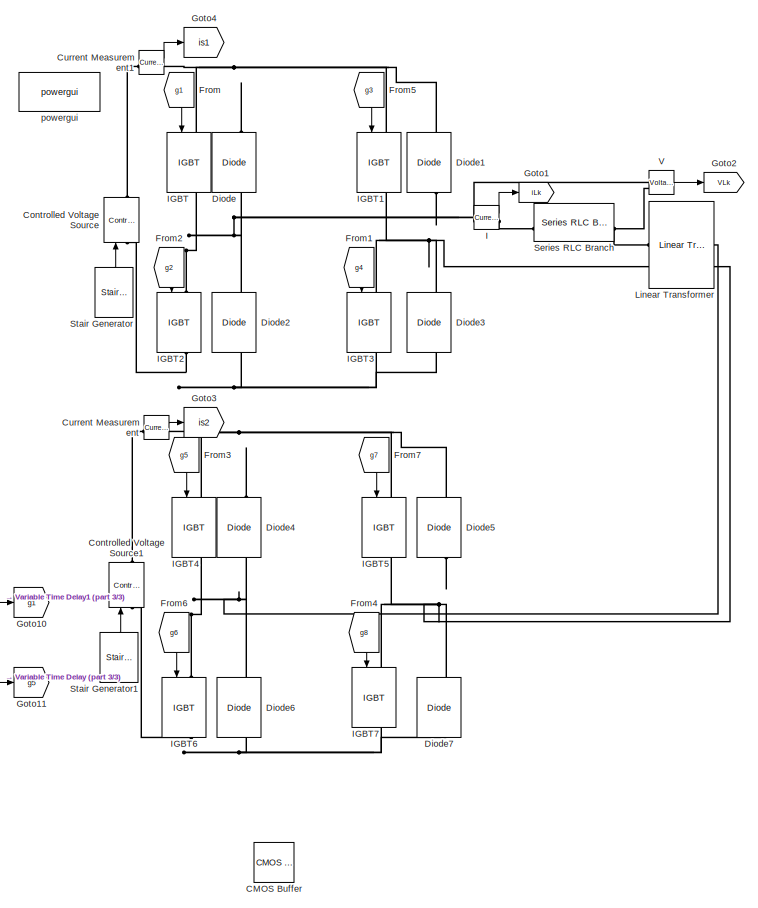
[diagram: root canvas - part 1/3, center side, full height]
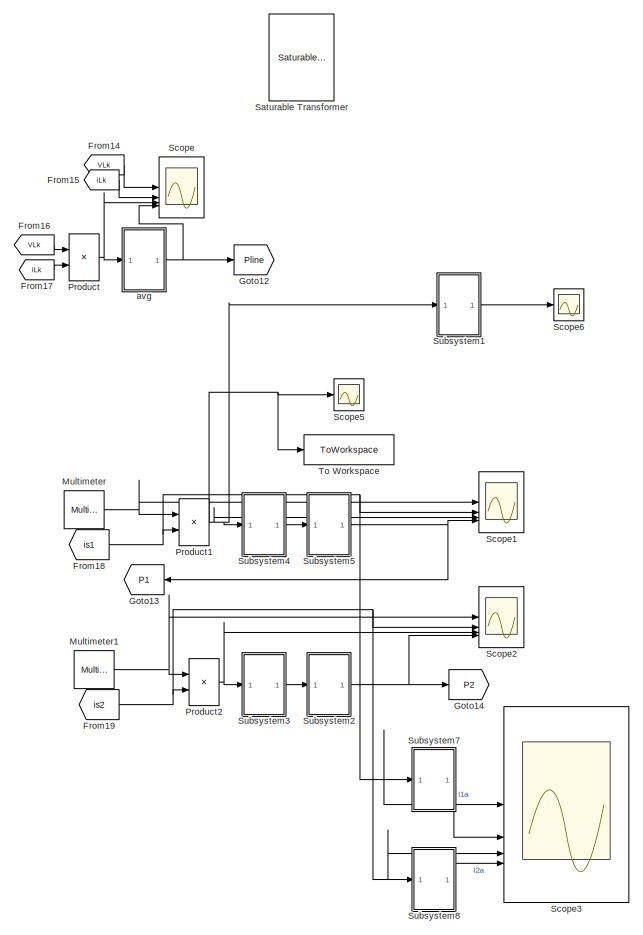
[diagram: root canvas - part 2/3, right side, full height]
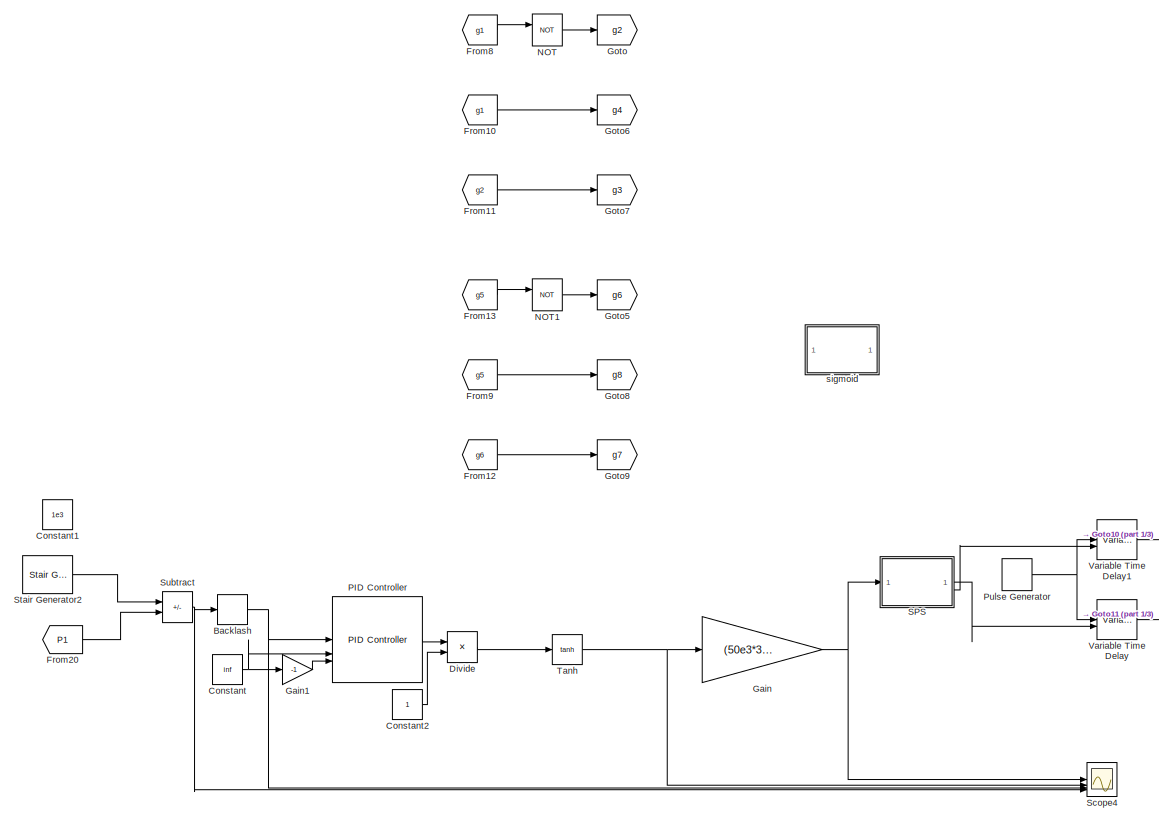
[diagram: root canvas - part 3/3, left side, full height]
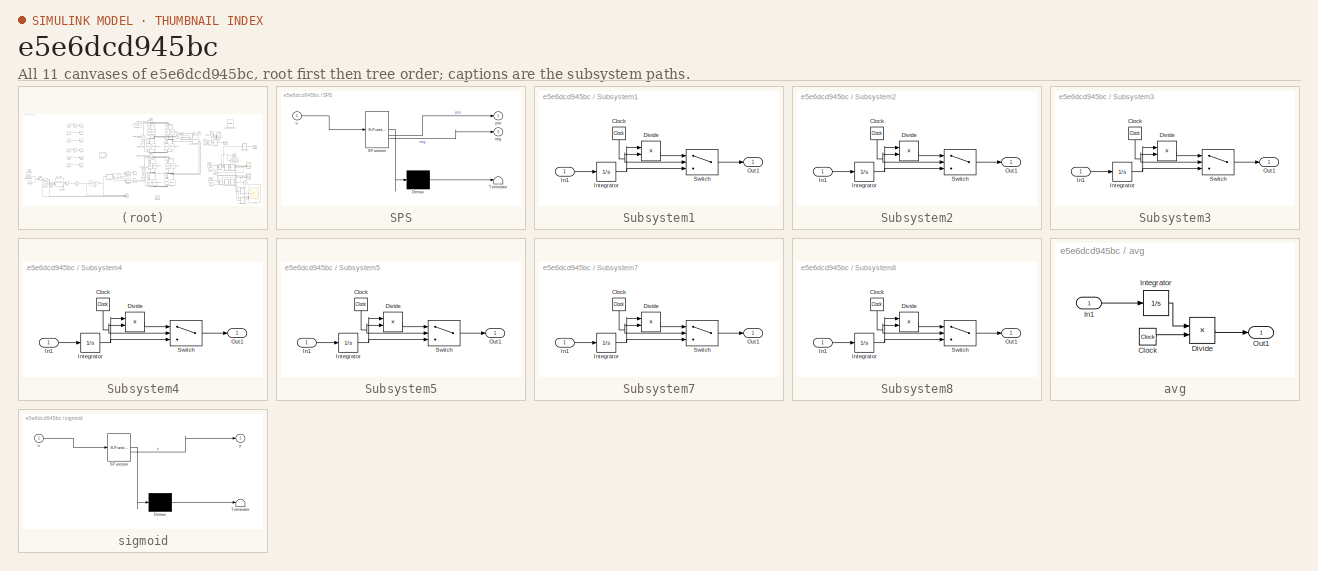
[diagram: thumbnail index - all 11 canvases of the model, root first then tree order]
MODEL slx_e5e6dcd945bc
KIND model
CONFIG AbsTol = auto
CONFIG EnableMultiTasking = off
CONFIG FixedStep = auto
CONFIG MaxStep = auto
CONFIG MinStep = auto
CONFIG RelTol = 1e-3
CONFIG SampleTimeConstraint = Unconstrained
CONFIG SolverName = VariableStepAuto
CONFIG StartTime = 0.0
CONFIG StopTime = 2e-2
BLOCK [Backlash] Backlash
  BacklashWidth = 0
BLOCK [Reference] CMOS Buffer  REF=ee_lib/Integrated Circuits/Logic/CMOS Buffer
  SourceBlock = ee_lib/Integrated Circuits/Logic/CMOS Buffer
  SourceType = CMOS Buffer
BLOCK [Constant] Constant
  Value = inf
BLOCK [Constant] Constant1
  Commented = on
  Value = 1e3
BLOCK [Constant] Constant2
BLOCK [Reference] Controlled Voltage Source  REF=spsControlledVoltageSourceLib/Controlled Voltage Source
  LibrarySourceBlock = sps_lib/Sources/Controlled Voltage Source
  SourceBlock = spsControlledVoltageSourceLib/Controlled Voltage Source
  SourceType = Controlled Voltage Source
BLOCK [Reference] Controlled Voltage Source1  REF=spsControlledVoltageSourceLib/Controlled Voltage Source
  LibrarySourceBlock = sps_lib/Sources/Controlled Voltage Source
  SourceBlock = spsControlledVoltageSourceLib/Controlled Voltage Source
  SourceType = Controlled Voltage Source
BLOCK [Reference] Current Measurement  REF=spsCurrentMeasurementLib/Current Measurement
  LibrarySourceBlock = sps_lib/Sensors and Measurements/Current Measurement
  SourceBlock = spsCurrentMeasurementLib/Current Measurement
  SourceType = Current Measurement
  UserDataPersistent = on
BLOCK [Reference] Current Measurement1  REF=spsCurrentMeasurementLib/Current Measurement
  LibrarySourceBlock = sps_lib/Sensors and Measurements/Current Measurement
  SourceBlock = spsCurrentMeasurementLib/Current Measurement
  SourceType = Current Measurement
  UserDataPersistent = on
BLOCK [Reference] Diode  REF=spsDiodeLib/Diode
  LibrarySourceBlock = sps_lib/Power Electronics/Diode
  NameLocation = right
  SourceBlock = spsDiodeLib/Diode
  SourceType = Diode
BLOCK [Reference] Diode1  REF=spsDiodeLib/Diode
  LibrarySourceBlock = sps_lib/Power Electronics/Diode
  NameLocation = right
  SourceBlock = spsDiodeLib/Diode
  SourceType = Diode
BLOCK [Reference] Diode2  REF=spsDiodeLib/Diode
  LibrarySourceBlock = sps_lib/Power Electronics/Diode
  NameLocation = right
  SourceBlock = spsDiodeLib/Diode
  SourceType = Diode
BLOCK [Reference] Diode3  REF=spsDiodeLib/Diode
  LibrarySourceBlock = sps_lib/Power Electronics/Diode
  NameLocation = right
  SourceBlock = spsDiodeLib/Diode
  SourceType = Diode
BLOCK [Reference] Diode4  REF=spsDiodeLib/Diode
  LibrarySourceBlock = sps_lib/Power Electronics/Diode
  NameLocation = right
  SourceBlock = spsDiodeLib/Diode
  SourceType = Diode
BLOCK [Reference] Diode5  REF=spsDiodeLib/Diode
  LibrarySourceBlock = sps_lib/Power Electronics/Diode
  NameLocation = right
  SourceBlock = spsDiodeLib/Diode
  SourceType = Diode
BLOCK [Reference] Diode6  REF=spsDiodeLib/Diode
  LibrarySourceBlock = sps_lib/Power Electronics/Diode
  NameLocation = right
  SourceBlock = spsDiodeLib/Diode
  SourceType = Diode
BLOCK [Reference] Diode7  REF=spsDiodeLib/Diode
  LibrarySourceBlock = sps_lib/Power Electronics/Diode
  NameLocation = right
  SourceBlock = spsDiodeLib/Diode
  SourceType = Diode
BLOCK [Product] Divide
  Inputs = */
BLOCK [From] From
  GotoTag = g1
  NameLocation = left
BLOCK [From] From1
  GotoTag = g4
  NameLocation = left
BLOCK [From] From10
  GotoTag = g1
BLOCK [From] From11
  GotoTag = g2
BLOCK [From] From12
  GotoTag = g6
BLOCK [From] From13
  GotoTag = g5
BLOCK [From] From14
  GotoTag = VLk
BLOCK [From] From15
  GotoTag = iLk
BLOCK [From] From16
  GotoTag = VLk
BLOCK [From] From17
  GotoTag = iLk
BLOCK [From] From18
  GotoTag = is1
BLOCK [From] From19
  GotoTag = is2
BLOCK [From] From2
  GotoTag = g2
  NameLocation = left
BLOCK [From] From20
  GotoTag = P1
BLOCK [From] From3
  GotoTag = g5
  NameLocation = left
BLOCK [From] From4
  GotoTag = g8
  NameLocation = left
BLOCK [From] From5
  GotoTag = g3
  NameLocation = left
BLOCK [From] From6
  GotoTag = g6
  NameLocation = left
BLOCK [From] From7
  GotoTag = g7
  NameLocation = left
BLOCK [From] From8
  GotoTag = g1
BLOCK [From] From9
  GotoTag = g5
BLOCK [Gain] Gain
  Gain = (50e3*360/90)^-1
BLOCK [Gain] Gain1
  Gain = -1
BLOCK [Goto] Goto
  GotoTag = g2
BLOCK [Goto] Goto1
  GotoTag = iLk
BLOCK [Goto] Goto10
  GotoTag = g1
BLOCK [Goto] Goto11
  GotoTag = g5
BLOCK [Goto] Goto12
  GotoTag = Pline
BLOCK [Goto] Goto13
  GotoTag = P1
  NameLocation = top
BLOCK [Goto] Goto14
  GotoTag = P2
BLOCK [Goto] Goto2
  GotoTag = VLk
BLOCK [Goto] Goto3
  GotoTag = is2
BLOCK [Goto] Goto4
  GotoTag = is1
BLOCK [Goto] Goto5
  GotoTag = g6
BLOCK [Goto] Goto6
  GotoTag = g4
BLOCK [Goto] Goto7
  GotoTag = g3
BLOCK [Goto] Goto8
  GotoTag = g8
BLOCK [Goto] Goto9
  GotoTag = g7
BLOCK [Reference] I  REF=spsCurrentMeasurementLib/Current Measurement
  LibrarySourceBlock = sps_lib/Sensors and Measurements/Current Measurement
  SourceBlock = spsCurrentMeasurementLib/Current Measurement
  SourceType = Current Measurement
  UserDataPersistent = on
BLOCK [Reference] IGBT  REF=spsIGBTLib/IGBT
  LibrarySourceBlock = sps_lib/Power Electronics/IGBT
  NameLocation = right
  SourceBlock = spsIGBTLib/IGBT
  SourceType = IGBT
BLOCK [Reference] IGBT1  REF=spsIGBTLib/IGBT
  LibrarySourceBlock = sps_lib/Power Electronics/IGBT
  NameLocation = right
  SourceBlock = spsIGBTLib/IGBT
  SourceType = IGBT
BLOCK [Reference] IGBT2  REF=spsIGBTLib/IGBT
  LibrarySourceBlock = sps_lib/Power Electronics/IGBT
  NameLocation = right
  SourceBlock = spsIGBTLib/IGBT
  SourceType = IGBT
BLOCK [Reference] IGBT3  REF=spsIGBTLib/IGBT
  LibrarySourceBlock = sps_lib/Power Electronics/IGBT
  NameLocation = right
  SourceBlock = spsIGBTLib/IGBT
  SourceType = IGBT
BLOCK [Reference] IGBT4  REF=spsIGBTLib/IGBT
  LibrarySourceBlock = sps_lib/Power Electronics/IGBT
  NameLocation = right
  SourceBlock = spsIGBTLib/IGBT
  SourceType = IGBT
BLOCK [Reference] IGBT5  REF=spsIGBTLib/IGBT
  LibrarySourceBlock = sps_lib/Power Electronics/IGBT
  NameLocation = right
  SourceBlock = spsIGBTLib/IGBT
  SourceType = IGBT
BLOCK [Reference] IGBT6  REF=spsIGBTLib/IGBT
  LibrarySourceBlock = sps_lib/Power Electronics/IGBT
  NameLocation = right
  SourceBlock = spsIGBTLib/IGBT
  SourceType = IGBT
BLOCK [Reference] IGBT7  REF=spsIGBTLib/IGBT
  LibrarySourceBlock = sps_lib/Power Electronics/IGBT
  NameLocation = right
  SourceBlock = spsIGBTLib/IGBT
  SourceType = IGBT
BLOCK [Reference] Linear Transformer  REF=spsLinearTransformerLib/Linear Transformer
  LibrarySourceBlock = sps_lib/Power Grid Elements/Linear Transformer
  SourceBlock = spsLinearTransformerLib/Linear Transformer
  SourceType = Linear Transformer
BLOCK [Reference] Multimeter  REF=spsMultimeterLib/Multimeter
  LibrarySourceBlock = sps_lib/Sensors and Measurements/Multimeter
  SourceBlock = spsMultimeterLib/Multimeter
  SourceType = Multimeter
BLOCK [Reference] Multimeter1  REF=spsMultimeterLib/Multimeter
  LibrarySourceBlock = sps_lib/Sensors and Measurements/Multimeter
  SourceBlock = spsMultimeterLib/Multimeter
  SourceType = Multimeter
BLOCK [Logic] NOT
  AllPortsSameDT = off
  IconShape = distinctive
  Operator = NOT
  OutDataTypeStr = boolean
BLOCK [Logic] NOT1
  AllPortsSameDT = off
  IconShape = distinctive
  Operator = NOT
  OutDataTypeStr = boolean
BLOCK [Reference] PID Controller  REF=slpidlib/PID Controller
  LibrarySourceBlock = simulink/Continuous/PID Controller
  SourceBlock = slpidlib/PID Controller
  SourceType = PID 1dof
BLOCK [Product] Product
BLOCK [Product] Product1
BLOCK [Product] Product2
BLOCK [DiscretePulseGenerator] Pulse Generator
  Period = 1/50e3
  PulseType = Time based
  PulseWidth = 50
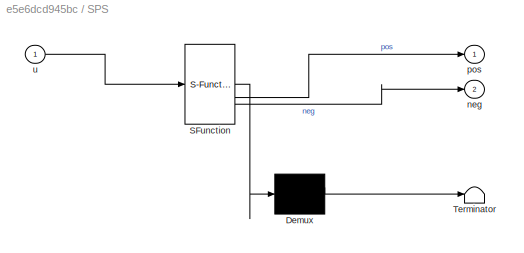
BLOCK [SubSystem] SPS
  ErrorFcn = Stateflow.Translate.translate
  LibrarySourceBlock = simulink/User-Defined\nFunctions/MATLAB Function
  PermitHierarchicalResolution = ExplicitOnly
  SFBlockType = MATLAB Function
  TreatAsAtomicUnit = on
BLOCK [Demux] SPS/ Demux 
  Outputs = 1
BLOCK [S-Function] SPS/ SFunction 
  EnableBusSupport = on
  FunctionName = sf_sfun
  PortCounts = [1 3]
  SFcnIsStateOwnerBlock = off
  SFunctionDeploymentMode = off
  Tag = Stateflow S-Function 1
BLOCK [Terminator] SPS/ Terminator 
BLOCK [Outport] SPS/neg
  Port = 2
BLOCK [Outport] SPS/pos
BLOCK [Inport] SPS/u
BLOCK [Reference] Saturable Transformer  REF=spsSaturableTransformerLib/Saturable Transformer
  Commented = on
  LibrarySourceBlock = sps_lib/Power Grid Elements/Saturable Transformer
  SourceBlock = spsSaturableTransformerLib/Saturable Transformer
  SourceType = Saturable Transformer
BLOCK [Scope] Scope
  Floating = off
  NumInputPorts = 4
  ScopeSpecificationString = Simulink.scopes.TimeScopeBlockCfg('CurrentConfiguration', extmgr.ConfigurationSet(extmgr.Configuration('Core','General UI',true),extmgr.Configuration('Core','Source UI',true),extmgr.Configuration('Sources','WiredSimulink',true),extmgr.Configuration('Visuals','Time Domain',true,'SerializedDisplays',{struct('MinYLimReal','-156.28126','MaxYLimReal','344.02485','YLabelReal','','MinYLimMag',' 0.00000',...<+3404ch>
BLOCK [Scope] Scope1
  Floating = off
  NumInputPorts = 4
  ScopeSpecificationString = Simulink.scopes.TimeScopeBlockCfg('CurrentConfiguration', extmgr.ConfigurationSet(extmgr.Configuration('Core','General UI',true),extmgr.Configuration('Core','Source UI',true),extmgr.Configuration('Sources','WiredSimulink',true,'DataLoggingVariableName','ScopeData1'),extmgr.Configuration('Visuals','Time Domain',true,'SerializedDisplays',{struct('MinYLimReal','90.00000','MaxYLimReal','110.00000','YL...<+3470ch>
BLOCK [Scope] Scope2
  Floating = off
  NumInputPorts = 4
  ScopeSpecificationString = Simulink.scopes.TimeScopeBlockCfg('CurrentConfiguration', extmgr.ConfigurationSet(extmgr.Configuration('Core','General UI',true),extmgr.Configuration('Core','Source UI',true),extmgr.Configuration('Sources','WiredSimulink',true,'DataLoggingVariableName','ScopeData2'),extmgr.Configuration('Visuals','Time Domain',true,'SerializedDisplays',{struct('MinYLimReal','90.00000','MaxYLimReal','110.00000','YL...<+3476ch>
BLOCK [Scope] Scope3
  Floating = off
  NumInputPorts = 4
  ScopeSpecificationString = Simulink.scopes.TimeScopeBlockCfg('CurrentConfiguration', extmgr.ConfigurationSet(extmgr.Configuration('Core','General UI',true),extmgr.Configuration('Core','Source UI',true),extmgr.Configuration('Sources','WiredSimulink',true,'DataLoggingVariableName','ScopeData1'),extmgr.Configuration('Visuals','Time Domain',true,'SerializedDisplays',{struct('MinYLimReal','-52.40124','MaxYLimReal','59.33411','YL...<+3470ch>
BLOCK [Scope] Scope4
  Floating = off
  NumInputPorts = 4
  ScopeSpecificationString = Simulink.scopes.TimeScopeBlockCfg('CurrentConfiguration', extmgr.ConfigurationSet(extmgr.Configuration('Core','General UI',true),extmgr.Configuration('Core','Source UI',true),extmgr.Configuration('Sources','WiredSimulink',true,'DataLoggingVariableName','ScopeData1'),extmgr.Configuration('Visuals','Time Domain',true,'SerializedDisplays',{struct('MinYLimReal','-0.000006','MaxYLimReal','0.000006','YL...<+3463ch>
BLOCK [Scope] Scope5
  Floating = off
  NumInputPorts = 1
  ScopeSpecificationString = Simulink.scopes.TimeScopeBlockCfg('CurrentConfiguration', extmgr.ConfigurationSet(extmgr.Configuration('Core','General UI',true),extmgr.Configuration('Core','Source UI',true),extmgr.Configuration('Sources','WiredSimulink',true,'DataLoggingVariableName','ScopeData1'),extmgr.Configuration('Visuals','Time Domain',true,'SerializedDisplays',{struct('MinYLimReal','-7025.56116','MaxYLimReal','8189.3537',...<+1411ch>
BLOCK [Scope] Scope6
  Floating = off
  NumInputPorts = 1
  ScopeSpecificationString = Simulink.scopes.TimeScopeBlockCfg('CurrentConfiguration', extmgr.ConfigurationSet(extmgr.Configuration('Core','General UI',true),extmgr.Configuration('Core','Source UI',true),extmgr.Configuration('Sources','WiredSimulink',true,'DataLoggingVariableName','ScopeData2'),extmgr.Configuration('Visuals','Time Domain',true,'SerializedDisplays',{struct('MinYLimReal','-360.43561','MaxYLimReal','1614.20898',...<+1432ch>
BLOCK [Reference] Series RLC Branch  REF=spsSeriesRLCBranchLib/Series RLC Branch
  LibrarySourceBlock = sps_lib/Passives/Series RLC Branch
  SourceBlock = spsSeriesRLCBranchLib/Series RLC Branch
  SourceType = Series RLC Branch
BLOCK [Reference] Stair Generator  REF=spsStairGeneratorLib/Stair
Generator
  LibrarySourceBlock = sps_lib/Sources/Signal Generator Sources/Stair\nGenerator
  NameLocation = right
  SourceBlock = spsStairGeneratorLib/Stair\nGenerator
  SourceType = Stair Generator
BLOCK [Reference] Stair Generator1  REF=spsStairGeneratorLib/Stair
Generator
  LibrarySourceBlock = sps_lib/Sources/Signal Generator Sources/Stair\nGenerator
  NameLocation = right
  SourceBlock = spsStairGeneratorLib/Stair\nGenerator
  SourceType = Stair Generator
BLOCK [Reference] Stair Generator2  REF=spsStairGeneratorLib/Stair
Generator
  LibrarySourceBlock = sps_lib/Sources/Signal Generator Sources/Stair\nGenerator
  SourceBlock = spsStairGeneratorLib/Stair\nGenerator
  SourceType = Stair Generator
BLOCK [SubSystem] Subsystem1
BLOCK [Clock] Subsystem1/Clock
  NameLocation = left
BLOCK [Product] Subsystem1/Divide
  Inputs = */
  NameLocation = top
BLOCK [Inport] Subsystem1/In1
BLOCK [Integrator] Subsystem1/Integrator
BLOCK [Outport] Subsystem1/Out1
BLOCK [Switch] Subsystem1/Switch
  Criteria = u2 > Threshold
  InputSameDT = off
  SaturateOnIntegerOverflow = off
BLOCK [SubSystem] Subsystem2
BLOCK [Clock] Subsystem2/Clock
  NameLocation = left
BLOCK [Product] Subsystem2/Divide
  Inputs = */
  NameLocation = top
BLOCK [Inport] Subsystem2/In1
BLOCK [Integrator] Subsystem2/Integrator
BLOCK [Outport] Subsystem2/Out1
BLOCK [Switch] Subsystem2/Switch
  Criteria = u2 > Threshold
  InputSameDT = off
  SaturateOnIntegerOverflow = off
BLOCK [SubSystem] Subsystem3
BLOCK [Clock] Subsystem3/Clock
  NameLocation = left
BLOCK [Product] Subsystem3/Divide
  Inputs = */
  NameLocation = top
BLOCK [Inport] Subsystem3/In1
BLOCK [Integrator] Subsystem3/Integrator
BLOCK [Outport] Subsystem3/Out1
BLOCK [Switch] Subsystem3/Switch
  Criteria = u2 > Threshold
  InputSameDT = off
  SaturateOnIntegerOverflow = off
BLOCK [SubSystem] Subsystem4
BLOCK [Clock] Subsystem4/Clock
  NameLocation = left
BLOCK [Product] Subsystem4/Divide
  Inputs = */
  NameLocation = top
BLOCK [Inport] Subsystem4/In1
BLOCK [Integrator] Subsystem4/Integrator
BLOCK [Outport] Subsystem4/Out1
BLOCK [Switch] Subsystem4/Switch
  Criteria = u2 > Threshold
  InputSameDT = off
  SaturateOnIntegerOverflow = off
BLOCK [SubSystem] Subsystem5
BLOCK [Clock] Subsystem5/Clock
  NameLocation = left
BLOCK [Product] Subsystem5/Divide
  Inputs = */
  NameLocation = top
BLOCK [Inport] Subsystem5/In1
BLOCK [Integrator] Subsystem5/Integrator
BLOCK [Outport] Subsystem5/Out1
BLOCK [Switch] Subsystem5/Switch
  Criteria = u2 > Threshold
  InputSameDT = off
  SaturateOnIntegerOverflow = off
BLOCK [SubSystem] Subsystem7
BLOCK [Clock] Subsystem7/Clock
  NameLocation = left
BLOCK [Product] Subsystem7/Divide
  Inputs = */
  NameLocation = top
BLOCK [Inport] Subsystem7/In1
BLOCK [Integrator] Subsystem7/Integrator
BLOCK [Outport] Subsystem7/Out1
BLOCK [Switch] Subsystem7/Switch
  Criteria = u2 > Threshold
  InputSameDT = off
  SaturateOnIntegerOverflow = off
BLOCK [SubSystem] Subsystem8
BLOCK [Clock] Subsystem8/Clock
  NameLocation = left
BLOCK [Product] Subsystem8/Divide
  Inputs = */
  NameLocation = top
BLOCK [Inport] Subsystem8/In1
BLOCK [Integrator] Subsystem8/Integrator
BLOCK [Outport] Subsystem8/Out1
BLOCK [Switch] Subsystem8/Switch
  Criteria = u2 > Threshold
  InputSameDT = off
  SaturateOnIntegerOverflow = off
BLOCK [Sum] Subtract
  IconShape = rectangular
  Inputs = +-
BLOCK [Trigonometry] Tanh
  Operator = tanh
BLOCK [ToWorkspace] To Workspace
  FixptAsFi = on
  MaxDataPoints = inf
  SampleTime = -1
  SaveFormat = Timeseries
  VariableName = Power_signal
BLOCK [Reference] V  REF=spsVoltageMeasurementLib/Voltage Measurement
  LibrarySourceBlock = sps_lib/Sensors and Measurements/Voltage Measurement
  SourceBlock = spsVoltageMeasurementLib/Voltage Measurement
  SourceType = Voltage Measurement
  UserDataPersistent = on
BLOCK [VariableTransportDelay] Variable Time Delay
  MaximumDelay = 10
BLOCK [VariableTransportDelay] Variable Time Delay1
  MaximumDelay = 10
BLOCK [SubSystem] avg
BLOCK [Clock] avg/Clock
BLOCK [Product] avg/Divide
  Inputs = */
BLOCK [Inport] avg/In1
BLOCK [Integrator] avg/Integrator
BLOCK [Outport] avg/Out1
BLOCK [Reference] powergui  REF=sps_lib/powergui
  Priority = 1
  SourceBlock = sps_lib/powergui
  SourceType = PSB option menu block
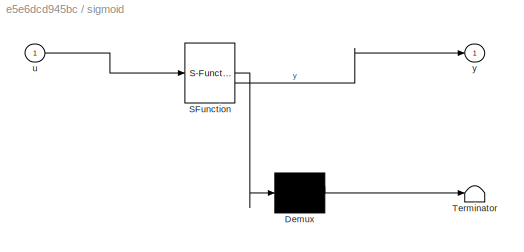
BLOCK [SubSystem] sigmoid
  ErrorFcn = Stateflow.Translate.translate
  LibrarySourceBlock = simulink/User-Defined\nFunctions/MATLAB Function
  PermitHierarchicalResolution = ExplicitOnly
  SFBlockType = MATLAB Function
  TreatAsAtomicUnit = on
BLOCK [Demux] sigmoid/ Demux 
  Outputs = 1
BLOCK [S-Function] sigmoid/ SFunction 
  EnableBusSupport = on
  FunctionName = sf_sfun
  PortCounts = [1 2]
  SFcnIsStateOwnerBlock = off
  SFunctionDeploymentMode = off
  Tag = Stateflow S-Function 2
BLOCK [Terminator] sigmoid/ Terminator 
BLOCK [Inport] sigmoid/u
BLOCK [Outport] sigmoid/y
NET Backlash:1 -> PID Controller:1, Scope4:3
LINE Constant2:1 -> Divide:2
NET Constant:1 -> Gain1:1, PID Controller:2
LINE Current Measurement1:1 -> Goto4:1
LINE Current Measurement:1 -> Goto3:1
LINE Divide:1 -> Tanh:1
LINE From10:1 -> Goto6:1
LINE From11:1 -> Goto7:1
LINE From12:1 -> Goto9:1
LINE From13:1 -> NOT1:1
LINE From14:1 -> Scope:1
LINE From15:1 -> Scope:2
LINE From16:1 -> Product:1
LINE From17:1 -> Product:2
NET From18:1 -> Product1:2, Scope1:2, Scope3:1, Subsystem7:1
NET From19:1 -> Product2:2, Scope2:2, Scope3:3, Subsystem8:1
LINE From1:1 -> IGBT3:1
LINE From20:1 -> Subtract:2
LINE From2:1 -> IGBT2:1
LINE From3:1 -> IGBT4:1
LINE From4:1 -> IGBT7:1
LINE From5:1 -> IGBT1:1
LINE From6:1 -> IGBT6:1
LINE From7:1 -> IGBT5:1
LINE From8:1 -> NOT:1
LINE From9:1 -> Goto8:1
LINE From:1 -> IGBT:1
LINE Gain1:1 -> PID Controller:3
NET Gain:1 -> SPS:1, Scope4:1
LINE I:1 -> Goto1:1
NET Multimeter1:1 -> Product2:1, Scope2:1
NET Multimeter:1 -> Product1:1, Scope1:1
LINE NOT1:1 -> Goto5:1
LINE NOT:1 -> Goto:1
LINE PID Controller:1 -> Divide:1
NET Product1:1 -> Scope1:3, Scope5:1, Subsystem1:1, Subsystem4:1, To Workspace:1
NET Product2:1 -> Scope2:3, Subsystem3:1
NET Product:1 -> Scope:3, avg:1
NET Pulse Generator:1 -> Variable Time Delay1:1, Variable Time Delay:1
LINE SPS:1 -> Variable Time Delay:2
LINE SPS:2 -> Variable Time Delay1:2
LINE Stair Generator1:1 -> Controlled Voltage Source1:1
LINE Stair Generator2:1 -> Subtract:1
LINE Stair Generator:1 -> Controlled Voltage Source:1
NET Subsystem1/Clock:1 -> Subsystem1/Divide:2, Subsystem1/Switch:2
LINE Subsystem1/Divide:1 -> Subsystem1/Switch:1
LINE Subsystem1/In1:1 -> Subsystem1/Integrator:1
NET Subsystem1/Integrator:1 -> Subsystem1/Divide:1, Subsystem1/Switch:3
LINE Subsystem1/Switch:1 -> Subsystem1/Out1:1
LINE Subsystem1:1 -> Scope6:1
NET Subsystem2/Clock:1 -> Subsystem2/Divide:2, Subsystem2/Switch:2
LINE Subsystem2/Divide:1 -> Subsystem2/Switch:1
LINE Subsystem2/In1:1 -> Subsystem2/Integrator:1
NET Subsystem2/Integrator:1 -> Subsystem2/Divide:1, Subsystem2/Switch:3
LINE Subsystem2/Switch:1 -> Subsystem2/Out1:1
NET Subsystem2:1 -> Goto14:1, Scope2:4
NET Subsystem3/Clock:1 -> Subsystem3/Divide:2, Subsystem3/Switch:2
LINE Subsystem3/Divide:1 -> Subsystem3/Switch:1
LINE Subsystem3/In1:1 -> Subsystem3/Integrator:1
NET Subsystem3/Integrator:1 -> Subsystem3/Divide:1, Subsystem3/Switch:3
LINE Subsystem3/Switch:1 -> Subsystem3/Out1:1
LINE Subsystem3:1 -> Subsystem2:1
NET Subsystem4/Clock:1 -> Subsystem4/Divide:2, Subsystem4/Switch:2
LINE Subsystem4/Divide:1 -> Subsystem4/Switch:1
LINE Subsystem4/In1:1 -> Subsystem4/Integrator:1
NET Subsystem4/Integrator:1 -> Subsystem4/Divide:1, Subsystem4/Switch:3
LINE Subsystem4/Switch:1 -> Subsystem4/Out1:1
LINE Subsystem4:1 -> Subsystem5:1
NET Subsystem5/Clock:1 -> Subsystem5/Divide:2, Subsystem5/Switch:2
LINE Subsystem5/Divide:1 -> Subsystem5/Switch:1
LINE Subsystem5/In1:1 -> Subsystem5/Integrator:1
NET Subsystem5/Integrator:1 -> Subsystem5/Divide:1, Subsystem5/Switch:3
LINE Subsystem5/Switch:1 -> Subsystem5/Out1:1
NET Subsystem5:1 -> Goto13:1, Scope1:4
NET Subsystem7/Clock:1 -> Subsystem7/Divide:2, Subsystem7/Switch:2
LINE Subsystem7/Divide:1 -> Subsystem7/Switch:1
LINE Subsystem7/In1:1 -> Subsystem7/Integrator:1
NET Subsystem7/Integrator:1 -> Subsystem7/Divide:1, Subsystem7/Switch:3
LINE Subsystem7/Switch:1 -> Subsystem7/Out1:1
LINE Subsystem7:1 -> Scope3:2
NET Subsystem8/Clock:1 -> Subsystem8/Divide:2, Subsystem8/Switch:2
LINE Subsystem8/Divide:1 -> Subsystem8/Switch:1
LINE Subsystem8/In1:1 -> Subsystem8/Integrator:1
NET Subsystem8/Integrator:1 -> Subsystem8/Divide:1, Subsystem8/Switch:3
LINE Subsystem8/Switch:1 -> Subsystem8/Out1:1
LINE Subsystem8:1 -> Scope3:4
NET Subtract:1 -> Backlash:1, Scope4:4
NET Tanh:1 -> Gain:1, Scope4:2
LINE V:1 -> Goto2:1
LINE Variable Time Delay1:1 -> Goto10:1
LINE Variable Time Delay:1 -> Goto11:1
LINE avg/Clock:1 -> avg/Divide:2
LINE avg/Divide:1 -> avg/Out1:1
LINE avg/In1:1 -> avg/Integrator:1
LINE avg/Integrator:1 -> avg/Divide:1
NET avg:1 -> Goto12:1, Scope:4
PNET net1: Controlled Voltage Source1:LConn1 -- Diode6:LConn1 -- Diode7:LConn1 -- IGBT6:RConn1 -- IGBT7:RConn1
PLINE Controlled Voltage Source1:RConn1 -- Current Measurement:LConn1
PNET net2: Controlled Voltage Source:LConn1 -- Diode2:LConn1 -- Diode3:LConn1 -- IGBT2:RConn1 -- IGBT3:RConn1
PLINE Controlled Voltage Source:RConn1 -- Current Measurement1:LConn1
PNET net3: Current Measurement1:RConn1 -- Diode1:RConn1 -- Diode:RConn1 -- IGBT1:LConn1 -- IGBT:LConn1
PNET net4: Current Measurement:RConn1 -- Diode4:RConn1 -- Diode5:RConn1 -- IGBT4:LConn1 -- IGBT5:LConn1
PNET net5: Diode1:LConn1 -- Diode3:RConn1 -- IGBT1:RConn1 -- IGBT3:LConn1 -- Linear Transformer:LConn2
PNET net6: Diode2:RConn1 -- Diode:LConn1 -- I:LConn1 -- IGBT2:LConn1 -- IGBT:RConn1 -- V:LConn1
PNET net7: Diode4:LConn1 -- Diode6:RConn1 -- IGBT4:RConn1 -- IGBT6:LConn1 -- Linear Transformer:RConn1
PNET net8: Diode5:LConn1 -- Diode7:RConn1 -- IGBT5:RConn1 -- IGBT7:LConn1 -- Linear Transformer:RConn2
PLINE I:RConn1 -- Series RLC Branch:LConn1
PNET net9: Linear Transformer:LConn1 -- Series RLC Branch:RConn1 -- V:LConn2
note: NET lines group one-source signal fan-out (src -> all destinations, sorted); 1:1 wires keep LINE; PNET lines group multi-terminal physical nets as a canonical sorted terminal list (undirected conserving connections); 2-terminal nets keep the pairwise PLINE form
CHART sigmoid states=1 transitions=1
  STATE_LABEL 'eML_blk_kernel()'
  STATE_LABEL 'SCRIPT:\nfunction y = fcn(u)\n\ny = 1/(1 + exp(-u));\n'
CHART SPS states=1 transitions=1
  STATE_LABEL 'eML_blk_kernel()'
  STATE_LABEL 'SCRIPT:\nfunction [pos,neg] = fcn(u)\n\nif u>=0\n    pos = u;\n    neg = 0;\nelse\n    neg = u;\n    pos = 0;\nend\n'
CHART  states=0 transitions=0
CHART  states=0 transitions=0
